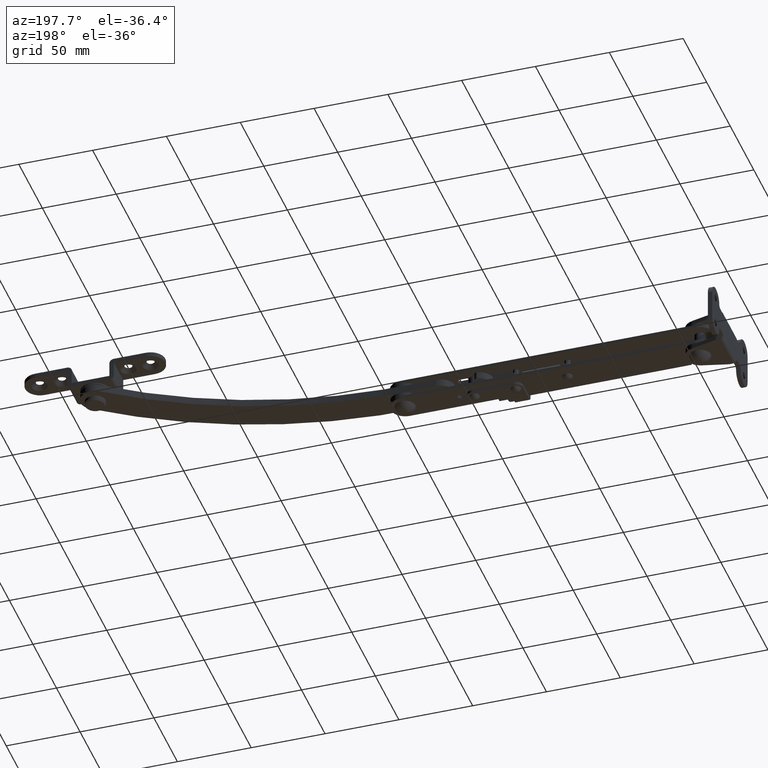
[diagram: clean part render]
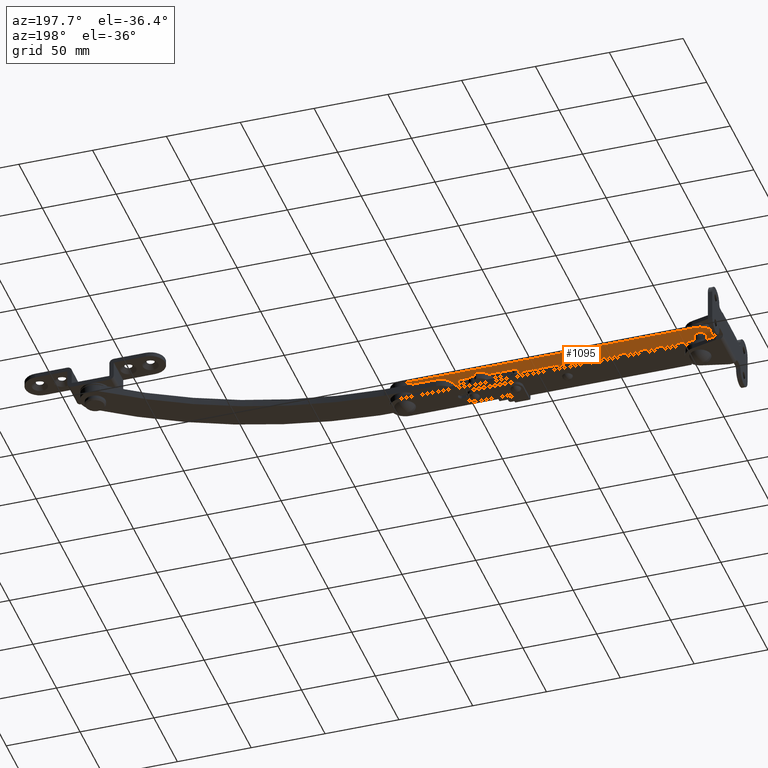
[diagram: same view with one face highlighted and labeled with its STEP entity id]
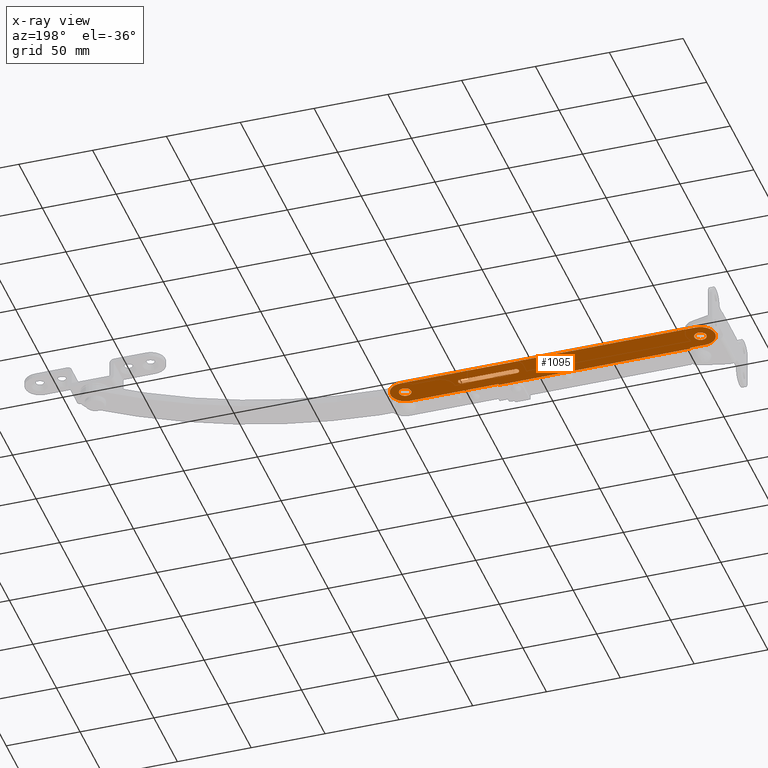
[diagram: x-ray of the same camera — body ghosted, the highlighted face saturated]
A machine part, auxiliary view. The second image highlights one B-rep face of the part: STEP entity #1095.
The next image is the same camera in x-ray: the body ghosted, the highlighted face saturated — about 0% of this face is hidden behind the body in this view.
In plain terms, the highlighted planar face has unit normal (-0, 0, 1).
Its self-contained STEP definition (entity closure, byte-faithful):
#7 = EDGE_CURVE ( 'NONE', #13155, #2141, #15427, .T. ) ;
#127 = VERTEX_POINT ( 'NONE', #2765 ) ;
#224 = CARTESIAN_POINT ( 'NONE',  ( 204.0499690000000000, 0.0000000000000000000, 5.000000000000569300 ) ) ;
#274 = AXIS2_PLACEMENT_3D ( 'NONE', #15134, #7436, #16430 ) ;
#331 = EDGE_LOOP ( 'NONE', ( #5198, #2170, #6676, #11367, #2380, #16585, #5507, #554, #11847 ) ) ;
#395 = DIRECTION ( 'NONE',  ( -1.000000000000000000, 0.0000000000000000000, -2.255140070863438400E-015 ) ) ;
#554 = ORIENTED_EDGE ( 'NONE', *, *, #7758, .T. ) ;
#563 = CIRCLE ( 'NONE', #3007, 2.000000000000001800 ) ;
#596 = CARTESIAN_POINT ( 'NONE',  ( 10.00000000000000000, -11.00000000000000000, 5.000000000000139400 ) ) ;
#681 = DIRECTION ( 'NONE',  ( 2.220497534810920000E-015, -0.0000000000000000000, -1.000000000000000000 ) ) ;
#828 = LINE ( 'NONE', #2171, #7707 ) ;
#879 = CARTESIAN_POINT ( 'NONE',  ( 90.00000000000000000, 0.0000000000000000000, 5.000000000000340200 ) ) ;
#1009 = CARTESIAN_POINT ( 'NONE',  ( -1.110248767405484000E-014, 0.0000000000000000000, 5.000000000000119900 ) ) ;
#1057 = EDGE_CURVE ( 'NONE', #5017, #7917, #3939, .T. ) ;
#1095 = ADVANCED_FACE ( 'NONE', ( #7358, #13415, #3520, #6550, #9980 ), #9431, .F. ) ;
#1127 = CARTESIAN_POINT ( 'NONE',  ( 90.00000000000000000, 0.0000000000000000000, 5.000000000000340200 ) ) ;
#1131 = LINE ( 'NONE', #12974, #4161 ) ;
#1331 = CARTESIAN_POINT ( 'NONE',  ( 0.0000000000000000000, 0.0000000000000000000, 5.000000000000119900 ) ) ;
#1377 = VERTEX_POINT ( 'NONE', #4500 ) ;
#1449 = VERTEX_POINT ( 'NONE', #7433 ) ;
#1482 = LINE ( 'NONE', #6690, #7511 ) ;
#1555 = LINE ( 'NONE', #11635, #7592 ) ;
#1696 = DIRECTION ( 'NONE',  ( 2.220497534810920000E-015, -0.0000000000000000000, -1.000000000000000000 ) ) ;
#1704 = CARTESIAN_POINT ( 'NONE',  ( -1.110248767405484000E-014, 0.0000000000000000000, 5.000000000000110100 ) ) ;
#2109 = CARTESIAN_POINT ( 'NONE',  ( 10.00000000000000000, -9.999999999999799300, 5.000000000000139400 ) ) ;
#2141 = VERTEX_POINT ( 'NONE', #13402 ) ;
#2170 = ORIENTED_EDGE ( 'NONE', *, *, #13083, .T. ) ;
#2171 = CARTESIAN_POINT ( 'NONE',  ( -1.110248767405484000E-014, -11.00000000000000000, 5.000000000000110100 ) ) ;
#2186 = DIRECTION ( 'NONE',  ( 1.000000000000000000, 0.0000000000000000000, 2.168404344971006900E-015 ) ) ;
#2308 = DIRECTION ( 'NONE',  ( -1.000000000000000000, 0.0000000000000000000, -2.255140518769849200E-015 ) ) ;
#2380 = ORIENTED_EDGE ( 'NONE', *, *, #7683, .T. ) ;
#2419 = DIRECTION ( 'NONE',  ( 1.000000000000000000, 0.0000000000000000000, 2.168404344971006900E-015 ) ) ;
#2569 = VECTOR ( 'NONE', #11946, 1000.000000000000000 ) ;
#2613 = DIRECTION ( 'NONE',  ( 1.000000000000000000, 0.0000000000000000000, 2.141633920959021100E-015 ) ) ;
#2754 = VECTOR ( 'NONE', #16267, 1000.000000000000000 ) ;
#2765 = CARTESIAN_POINT ( 'NONE',  ( -1.110248767405484000E-014, 10.00000000000000000, 5.000000000000119900 ) ) ;
#2905 = CIRCLE ( 'NONE', #8298, 2.000000000000001800 ) ;
#2970 = LINE ( 'NONE', #16379, #2569 ) ;
#2981 = CARTESIAN_POINT ( 'NONE',  ( 209.9999709861578200, 1.986158023026284700E-006, 5.000000000000582600 ) ) ;
#3007 = AXIS2_PLACEMENT_3D ( 'NONE', #879, #9907, #2186 ) ;
#3390 = VERTEX_POINT ( 'NONE', #2981 ) ;
#3520 = FACE_OUTER_BOUND ( 'NONE', #331, .T. ) ;
#3888 = DIRECTION ( 'NONE',  ( -1.000000000000000000, 0.0000000000000000000, -2.220497534810920000E-015 ) ) ;
#3939 = CIRCLE ( 'NONE', #10467, 4.049999999999999800 ) ;
#3957 = DIRECTION ( 'NONE',  ( 2.220497534810920000E-015, -0.0000000000000000000, -1.000000000000000000 ) ) ;
#3998 = CIRCLE ( 'NONE', #15002, 4.049999999999998000 ) ;
#4022 = EDGE_LOOP ( 'NONE', ( #8637, #16102 ) ) ;
#4084 = CARTESIAN_POINT ( 'NONE',  ( 125.0000000000000000, -2.100006000000000000, 5.000000000000450300 ) ) ;
#4161 = VECTOR ( 'NONE', #7844, 1000.000000000000000 ) ;
#4281 = DIRECTION ( 'NONE',  ( 1.000000000000000000, 0.0000000000000000000, 2.220497534810920000E-015 ) ) ;
#4287 = EDGE_CURVE ( 'NONE', #5755, #1377, #563, .T. ) ;
#4500 = CARTESIAN_POINT ( 'NONE',  ( 92.00000000000000000, 0.0000000000000000000, 5.000000000000344600 ) ) ;
#4721 = VERTEX_POINT ( 'NONE', #9065 ) ;
#4860 = AXIS2_PLACEMENT_3D ( 'NONE', #15863, #8153, #395 ) ;
#5017 = VERTEX_POINT ( 'NONE', #11145 ) ;
#5054 = VERTEX_POINT ( 'NONE', #2109 ) ;
#5198 = ORIENTED_EDGE ( 'NONE', *, *, #16274, .T. ) ;
#5250 = CARTESIAN_POINT ( 'NONE',  ( 161.9999689999999900, 0.0000000000000000000, 5.000000000000450300 ) ) ;
#5507 = ORIENTED_EDGE ( 'NONE', *, *, #12734, .T. ) ;
#5531 = CARTESIAN_POINT ( 'NONE',  ( 0.0000000000000000000, 0.0000000000000000000, 5.000000000000119900 ) ) ;
#5633 = EDGE_CURVE ( 'NONE', #1449, #13155, #2970, .T. ) ;
#5755 = VERTEX_POINT ( 'NONE', #15908 ) ;
#5849 = ORIENTED_EDGE ( 'NONE', *, *, #5633, .F. ) ;
#5951 = EDGE_CURVE ( 'NONE', #16623, #12995, #3998, .T. ) ;
#6117 = VERTEX_POINT ( 'NONE', #7290 ) ;
#6237 = VERTEX_POINT ( 'NONE', #8765 ) ;
#6246 = EDGE_CURVE ( 'NONE', #7917, #5017, #11867, .T. ) ;
#6550 = FACE_BOUND ( 'NONE', #10828, .T. ) ;
#6676 = ORIENTED_EDGE ( 'NONE', *, *, #10712, .T. ) ;
#6690 = CARTESIAN_POINT ( 'NONE',  ( 140.0000000000000000, -9.999999999999799300, 5.000000000000429900 ) ) ;
#6703 = CARTESIAN_POINT ( 'NONE',  ( 4.049999999999999800, 0.0000000000000000000, 5.000000000000128800 ) ) ;
#6759 = AXIS2_PLACEMENT_3D ( 'NONE', #5250, #3957, #9086 ) ;
#6823 = DIRECTION ( 'NONE',  ( 1.000000000000000000, 0.0000000000000000000, 2.141633920959021100E-015 ) ) ;
#6880 = ORIENTED_EDGE ( 'NONE', *, *, #4287, .F. ) ;
#7101 = EDGE_CURVE ( 'NONE', #8180, #6237, #1555, .T. ) ;
#7139 = EDGE_CURVE ( 'NONE', #8051, #11814, #1131, .T. ) ;
#7205 = DIRECTION ( 'NONE',  ( 1.000000000000000000, 0.0000000000000000000, 2.220497534810920000E-015 ) ) ;
#7217 = AXIS2_PLACEMENT_3D ( 'NONE', #7716, #16704, #9022 ) ;
#7290 = CARTESIAN_POINT ( 'NONE',  ( -1.110248767405484000E-014, -9.999999999999799300, 5.000000000000119900 ) ) ;
#7358 = FACE_BOUND ( 'NONE', #10668, .T. ) ;
#7362 = EDGE_CURVE ( 'NONE', #2141, #8051, #11031, .T. ) ;
#7433 = CARTESIAN_POINT ( 'NONE',  ( 125.0000000000000000, 2.100006000000095100, 5.000000000000450300 ) ) ;
#7436 = DIRECTION ( 'NONE',  ( 2.220497534810920000E-015, -0.0000000000000000000, -1.000000000000000000 ) ) ;
#7511 = VECTOR ( 'NONE', #9295, 1000.000000000000000 ) ;
#7528 = EDGE_CURVE ( 'NONE', #127, #11022, #15676, .T. ) ;
#7592 = VECTOR ( 'NONE', #3888, 1000.000000000000000 ) ;
#7596 = CIRCLE ( 'NONE', #7217, 2.099999999999990800 ) ;
#7672 = CARTESIAN_POINT ( 'NONE',  ( 199.9999689999999900, 1.986158023026284700E-006, 5.000000000000560400 ) ) ;
#7683 = EDGE_CURVE ( 'NONE', #6117, #127, #10653, .T. ) ;
#7707 = VECTOR ( 'NONE', #11207, 1000.000000000000000 ) ;
#7716 = CARTESIAN_POINT ( 'NONE',  ( 125.0000000000000000, 0.0000000000000000000, 5.000000000000450300 ) ) ;
#7758 = EDGE_CURVE ( 'NONE', #3390, #8180, #10235, .T. ) ;
#7844 = DIRECTION ( 'NONE',  ( -1.000000000000000000, 0.0000000000000000000, -2.220497534810920000E-015 ) ) ;
#7872 = AXIS2_PLACEMENT_3D ( 'NONE', #1009, #10033, #2308 ) ;
#7917 = VERTEX_POINT ( 'NONE', #6703 ) ;
#8051 = VERTEX_POINT ( 'NONE', #9370 ) ;
#8153 = DIRECTION ( 'NONE',  ( 2.220497534810920000E-015, 0.0000000000000000000, -1.000000000000000000 ) ) ;
#8180 = VERTEX_POINT ( 'NONE', #13535 ) ;
#8224 = ORIENTED_EDGE ( 'NONE', *, *, #7, .F. ) ;
#8298 = AXIS2_PLACEMENT_3D ( 'NONE', #1127, #10146, #2419 ) ;
#8315 = EDGE_CURVE ( 'NONE', #5054, #6117, #16443, .T. ) ;
#8435 = CARTESIAN_POINT ( 'NONE',  ( 199.9999689999999900, 0.0000000000000000000, 5.000000000000560400 ) ) ;
#8437 = EDGE_CURVE ( 'NONE', #12995, #16623, #12243, .T. ) ;
#8637 = ORIENTED_EDGE ( 'NONE', *, *, #6246, .F. ) ;
#8668 = EDGE_CURVE ( 'NONE', #11814, #1449, #7596, .T. ) ;
#8765 = CARTESIAN_POINT ( 'NONE',  ( 140.0000000000000000, -9.999999999999799300, 5.000000000000429900 ) ) ;
#8963 = DIRECTION ( 'NONE',  ( -1.000000000000000000, 0.0000000000000000000, -2.255140070863438400E-015 ) ) ;
#8965 = LINE ( 'NONE', #9504, #15398 ) ;
#9022 = DIRECTION ( 'NONE',  ( 1.000000000000000000, 0.0000000000000000000, 2.065146995210493900E-015 ) ) ;
#9065 = CARTESIAN_POINT ( 'NONE',  ( 140.0000000000000000, -11.00000000000000000, 5.000000000000420100 ) ) ;
#9086 = DIRECTION ( 'NONE',  ( 1.000000000000000000, 0.0000000000000000000, 2.065146995210493900E-015 ) ) ;
#9295 = DIRECTION ( 'NONE',  ( 0.0000000000000000000, -1.000000000000000000, 0.0000000000000000000 ) ) ;
#9370 = CARTESIAN_POINT ( 'NONE',  ( 161.9999691466075000, -2.100006000000000000, 5.000000000000469800 ) ) ;
#9417 = CARTESIAN_POINT ( 'NONE',  ( 161.9999689999999900, 0.0000000000000000000, 5.000000000000450300 ) ) ;
#9431 = PLANE ( 'NONE',  #13907 ) ;
#9504 = CARTESIAN_POINT ( 'NONE',  ( 10.00000000000000000, -13.00000000000000000, 5.000000000000139400 ) ) ;
#9509 = EDGE_CURVE ( 'NONE', #1377, #5755, #2905, .T. ) ;
#9587 = AXIS2_PLACEMENT_3D ( 'NONE', #7672, #16655, #8963 ) ;
#9724 = DIRECTION ( 'NONE',  ( 1.000000000000000000, 0.0000000000000000000, 2.141633920959022300E-015 ) ) ;
#9907 = DIRECTION ( 'NONE',  ( 2.220497534810920000E-015, -0.0000000000000000000, -1.000000000000000000 ) ) ;
#9980 = FACE_BOUND ( 'NONE', #13278, .T. ) ;
#10003 = CARTESIAN_POINT ( 'NONE',  ( 161.9999689999999900, 2.100006000000095100, 5.000000000000450300 ) ) ;
#10033 = DIRECTION ( 'NONE',  ( 2.220497534810920000E-015, 0.0000000000000000000, -1.000000000000000000 ) ) ;
#10146 = DIRECTION ( 'NONE',  ( 2.220497534810920000E-015, -0.0000000000000000000, -1.000000000000000000 ) ) ;
#10235 = CIRCLE ( 'NONE', #9587, 10.00000198615783000 ) ;
#10345 = DIRECTION ( 'NONE',  ( 2.220497534810920000E-015, -0.0000000000000000000, -1.000000000000000000 ) ) ;
#10467 = AXIS2_PLACEMENT_3D ( 'NONE', #5531, #14537, #6823 ) ;
#10653 = CIRCLE ( 'NONE', #7872, 10.00000000000000000 ) ;
#10668 = EDGE_LOOP ( 'NONE', ( #13221, #6880 ) ) ;
#10712 = EDGE_CURVE ( 'NONE', #12039, #5054, #8965, .T. ) ;
#10725 = DIRECTION ( 'NONE',  ( 1.000000000000000000, 0.0000000000000000000, 2.065146995210493900E-015 ) ) ;
#10818 = DIRECTION ( 'NONE',  ( 0.0000000000000000000, 1.000000000000000000, 0.0000000000000000000 ) ) ;
#10828 = EDGE_LOOP ( 'NONE', ( #12416, #14152 ) ) ;
#10944 = CIRCLE ( 'NONE', #4860, 10.00000198615783000 ) ;
#11022 = VERTEX_POINT ( 'NONE', #16188 ) ;
#11031 = CIRCLE ( 'NONE', #15765, 2.099999999999990800 ) ;
#11145 = CARTESIAN_POINT ( 'NONE',  ( -4.049999999999999800, 4.959819536546779600E-016, 5.000000000000111000 ) ) ;
#11207 = DIRECTION ( 'NONE',  ( -1.000000000000000000, -0.0000000000000000000, -2.220497534810920000E-015 ) ) ;
#11265 = ORIENTED_EDGE ( 'NONE', *, *, #8668, .F. ) ;
#11266 = ORIENTED_EDGE ( 'NONE', *, *, #7362, .F. ) ;
#11367 = ORIENTED_EDGE ( 'NONE', *, *, #8315, .T. ) ;
#11635 = CARTESIAN_POINT ( 'NONE',  ( 199.9999688314125300, -9.999999999999799300, 5.000000000000560400 ) ) ;
#11814 = VERTEX_POINT ( 'NONE', #4084 ) ;
#11847 = ORIENTED_EDGE ( 'NONE', *, *, #7101, .T. ) ;
#11867 = CIRCLE ( 'NONE', #12113, 4.049999999999999800 ) ;
#11946 = DIRECTION ( 'NONE',  ( 1.000000000000000000, 0.0000000000000000000, 2.220497534810920000E-015 ) ) ;
#12025 = DIRECTION ( 'NONE',  ( -2.220497534810920000E-015, 0.0000000000000000000, 1.000000000000000000 ) ) ;
#12039 = VERTEX_POINT ( 'NONE', #596 ) ;
#12113 = AXIS2_PLACEMENT_3D ( 'NONE', #1331, #10345, #2613 ) ;
#12243 = CIRCLE ( 'NONE', #274, 4.049999999999998000 ) ;
#12416 = ORIENTED_EDGE ( 'NONE', *, *, #5951, .F. ) ;
#12734 = EDGE_CURVE ( 'NONE', #11022, #3390, #10944, .T. ) ;
#12974 = CARTESIAN_POINT ( 'NONE',  ( -1.110248767405484000E-014, -2.100006000000000000, 5.000000000000110100 ) ) ;
#12995 = VERTEX_POINT ( 'NONE', #13680 ) ;
#13083 = EDGE_CURVE ( 'NONE', #4721, #12039, #828, .T. ) ;
#13155 = VERTEX_POINT ( 'NONE', #10003 ) ;
#13221 = ORIENTED_EDGE ( 'NONE', *, *, #9509, .F. ) ;
#13278 = EDGE_LOOP ( 'NONE', ( #11265, #13648, #11266, #8224, #5849 ) ) ;
#13402 = CARTESIAN_POINT ( 'NONE',  ( 164.0999689999999900, 0.0000000000000000000, 5.000000000000454700 ) ) ;
#13415 = FACE_BOUND ( 'NONE', #4022, .T. ) ;
#13535 = CARTESIAN_POINT ( 'NONE',  ( 199.9999688314125300, -9.999999999999799300, 5.000000000000560400 ) ) ;
#13648 = ORIENTED_EDGE ( 'NONE', *, *, #7139, .F. ) ;
#13680 = CARTESIAN_POINT ( 'NONE',  ( 195.9499690000000100, 4.959819536546781600E-016, 5.000000000000551600 ) ) ;
#13907 = AXIS2_PLACEMENT_3D ( 'NONE', #1704, #12025, #4281 ) ;
#14152 = ORIENTED_EDGE ( 'NONE', *, *, #8437, .F. ) ;
#14537 = DIRECTION ( 'NONE',  ( 2.220497534810920000E-015, -0.0000000000000000000, -1.000000000000000000 ) ) ;
#14916 = CARTESIAN_POINT ( 'NONE',  ( -1.110248767405484000E-014, 10.00000000000000000, 5.000000000000119900 ) ) ;
#14977 = CARTESIAN_POINT ( 'NONE',  ( 10.00000000000000000, -9.999999999999799300, 5.000000000000139400 ) ) ;
#15002 = AXIS2_PLACEMENT_3D ( 'NONE', #8435, #681, #9724 ) ;
#15134 = CARTESIAN_POINT ( 'NONE',  ( 199.9999689999999900, 0.0000000000000000000, 5.000000000000560400 ) ) ;
#15398 = VECTOR ( 'NONE', #10818, 1000.000000000000000 ) ;
#15427 = CIRCLE ( 'NONE', #6759, 2.099999999999990800 ) ;
#15676 = LINE ( 'NONE', #14916, #16063 ) ;
#15765 = AXIS2_PLACEMENT_3D ( 'NONE', #9417, #1696, #10725 ) ;
#15863 = CARTESIAN_POINT ( 'NONE',  ( 199.9999689999999900, 1.986158023026284700E-006, 5.000000000000560400 ) ) ;
#15908 = CARTESIAN_POINT ( 'NONE',  ( 88.00000000000000000, 2.449293598294703900E-016, 5.000000000000335700 ) ) ;
#16063 = VECTOR ( 'NONE', #7205, 1000.000000000000000 ) ;
#16102 = ORIENTED_EDGE ( 'NONE', *, *, #1057, .F. ) ;
#16188 = CARTESIAN_POINT ( 'NONE',  ( 199.9910557339145200, 10.00000000000000000, 5.000000000000560400 ) ) ;
#16267 = DIRECTION ( 'NONE',  ( -1.000000000000000000, 0.0000000000000000000, -2.220497534810920000E-015 ) ) ;
#16274 = EDGE_CURVE ( 'NONE', #6237, #4721, #1482, .T. ) ;
#16379 = CARTESIAN_POINT ( 'NONE',  ( -1.110248767405484000E-014, 2.100006000000095100, 5.000000000000110100 ) ) ;
#16430 = DIRECTION ( 'NONE',  ( 1.000000000000000000, 0.0000000000000000000, 2.141633920959022300E-015 ) ) ;
#16443 = LINE ( 'NONE', #14977, #2754 ) ;
#16585 = ORIENTED_EDGE ( 'NONE', *, *, #7528, .T. ) ;
#16623 = VERTEX_POINT ( 'NONE', #224 ) ;
#16655 = DIRECTION ( 'NONE',  ( 2.220497534810920000E-015, 0.0000000000000000000, -1.000000000000000000 ) ) ;
#16704 = DIRECTION ( 'NONE',  ( 2.220497534810920000E-015, -0.0000000000000000000, -1.000000000000000000 ) ) ;